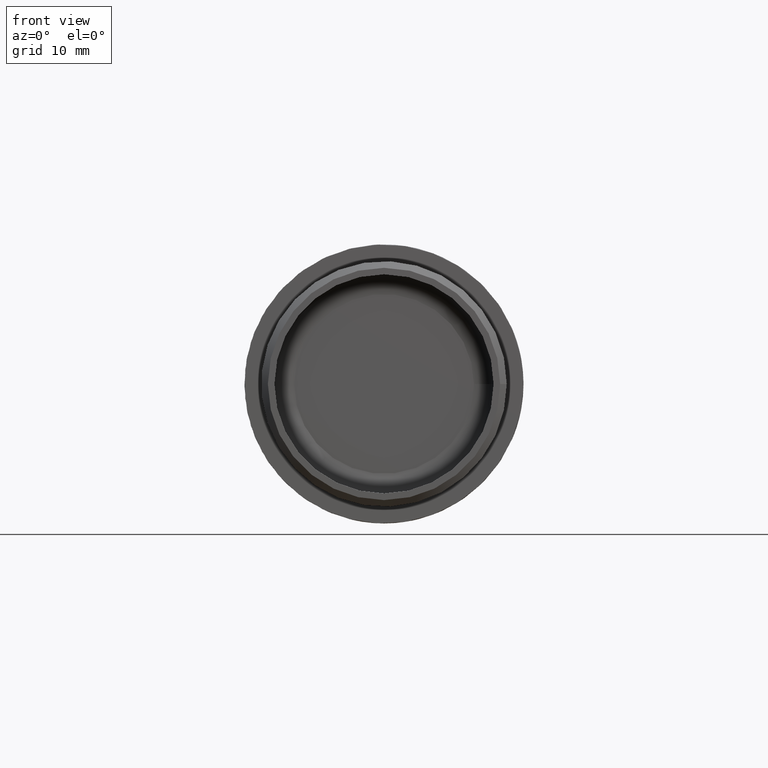
[diagram: clean part render]
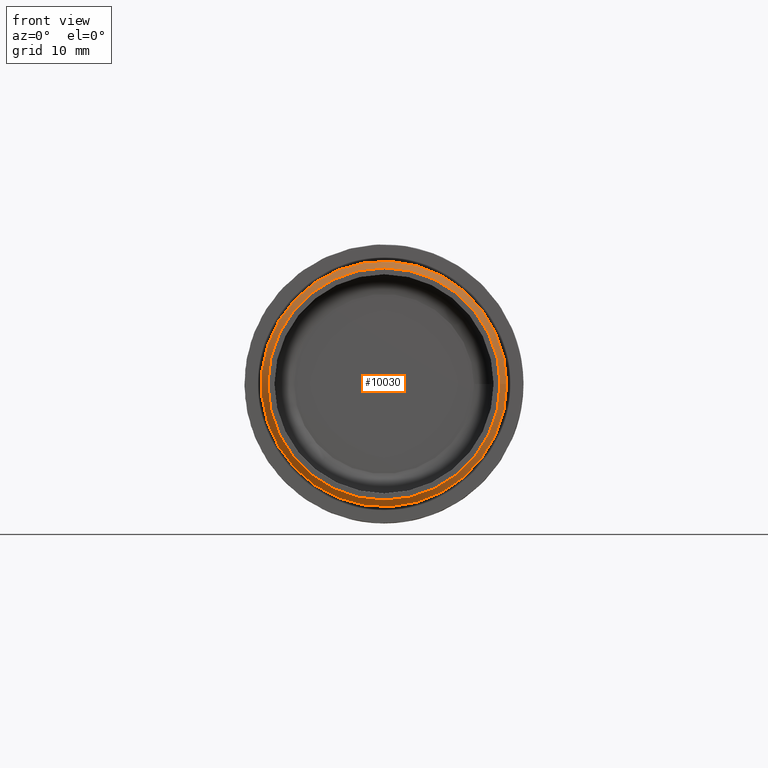
[diagram: same view with one face highlighted and labeled with its STEP entity id]
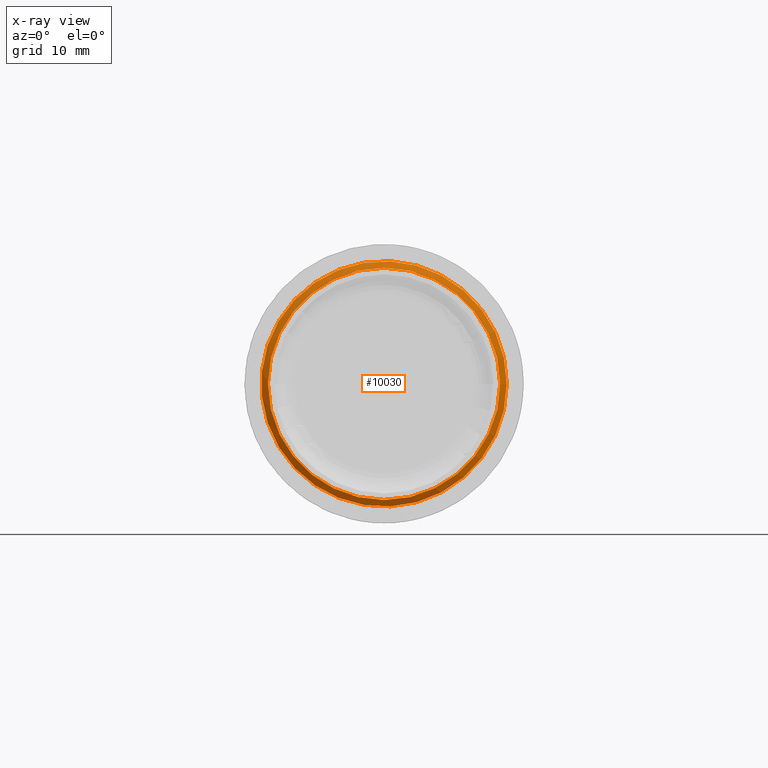
[diagram: x-ray of the same camera — body ghosted, the highlighted face saturated]
A machine part, front view. The second image highlights one B-rep face of the part: STEP entity #10030.
The next image is the same camera in x-ray: the body ghosted, the highlighted face saturated — about 0% of this face is hidden behind the body in this view.
In plain terms, the highlighted conical surface has half-angle 45 deg.
Its self-contained STEP definition (entity closure, byte-faithful):
#356 = DIRECTION ( 'NONE',  ( 1.000000000000000000, 0.0000000000000000000, 0.0000000000000000000 ) ) ;
#1338 = VERTEX_POINT ( 'NONE', #1988 ) ;
#1820 = VERTEX_POINT ( 'NONE', #18330 ) ;
#1875 = DIRECTION ( 'NONE',  ( -1.000000000000000000, 0.0000000000000000000, 0.0000000000000000000 ) ) ;
#1988 = CARTESIAN_POINT ( 'NONE',  ( 18.65000000000000200, -19.00000000000001800, 0.0000000000000000000 ) ) ;
#4242 = AXIS2_PLACEMENT_3D ( 'NONE', #4905, #19141, #356 ) ;
#4421 = EDGE_CURVE ( 'NONE', #1338, #1338, #16433, .T. ) ;
#4684 = DIRECTION ( 'NONE',  ( -6.794605754846622800E-017, 1.000000000000000000, 0.0000000000000000000 ) ) ;
#4905 = CARTESIAN_POINT ( 'NONE',  ( 1.290975093420857700E-015, -19.00000000000001800, 0.0000000000000000000 ) ) ;
#6818 = EDGE_LOOP ( 'NONE', ( #10830 ) ) ;
#7809 = CIRCLE ( 'NONE', #13184, 17.65000000000001300 ) ;
#9402 = CARTESIAN_POINT ( 'NONE',  ( 1.358921150969322700E-015, -20.00000000000000000, 0.0000000000000000000 ) ) ;
#9652 = DIRECTION ( 'NONE',  ( 1.000000000000000000, 0.0000000000000000000, 0.0000000000000000000 ) ) ;
#10030 = ADVANCED_FACE ( 'NONE', ( #11771, #10069 ), #18034, .T. ) ;
#10069 = FACE_BOUND ( 'NONE', #6818, .T. ) ;
#10830 = ORIENTED_EDGE ( 'NONE', *, *, #14626, .F. ) ;
#11766 = ORIENTED_EDGE ( 'NONE', *, *, #4421, .F. ) ;
#11771 = FACE_OUTER_BOUND ( 'NONE', #11781, .T. ) ;
#11781 = EDGE_LOOP ( 'NONE', ( #11766 ) ) ;
#13184 = AXIS2_PLACEMENT_3D ( 'NONE', #15945, #19173, #9652 ) ;
#14345 = AXIS2_PLACEMENT_3D ( 'NONE', #9402, #4684, #1875 ) ;
#14626 = EDGE_CURVE ( 'NONE', #1820, #1820, #7809, .T. ) ;
#15945 = CARTESIAN_POINT ( 'NONE',  ( 1.358921150969322700E-015, -20.00000000000000000, 0.0000000000000000000 ) ) ;
#16433 = CIRCLE ( 'NONE', #4242, 18.65000000000000200 ) ;
#18034 = CONICAL_SURFACE ( 'NONE', #14345, 17.65000000000001300, 0.7853981633974517200 ) ;
#18330 = CARTESIAN_POINT ( 'NONE',  ( 17.65000000000001300, -20.00000000000000000, 0.0000000000000000000 ) ) ;
#19141 = DIRECTION ( 'NONE',  ( -6.794605754846622800E-017, 1.000000000000000000, 0.0000000000000000000 ) ) ;
#19173 = DIRECTION ( 'NONE',  ( 6.794605754846613000E-017, -1.000000000000000000, 0.0000000000000000000 ) ) ;